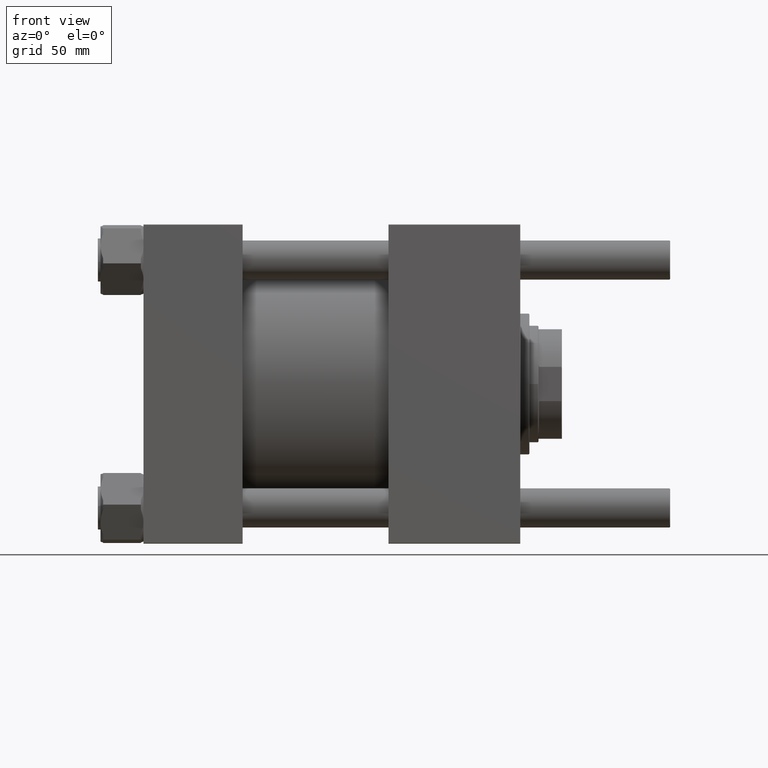
[diagram: clean part render]
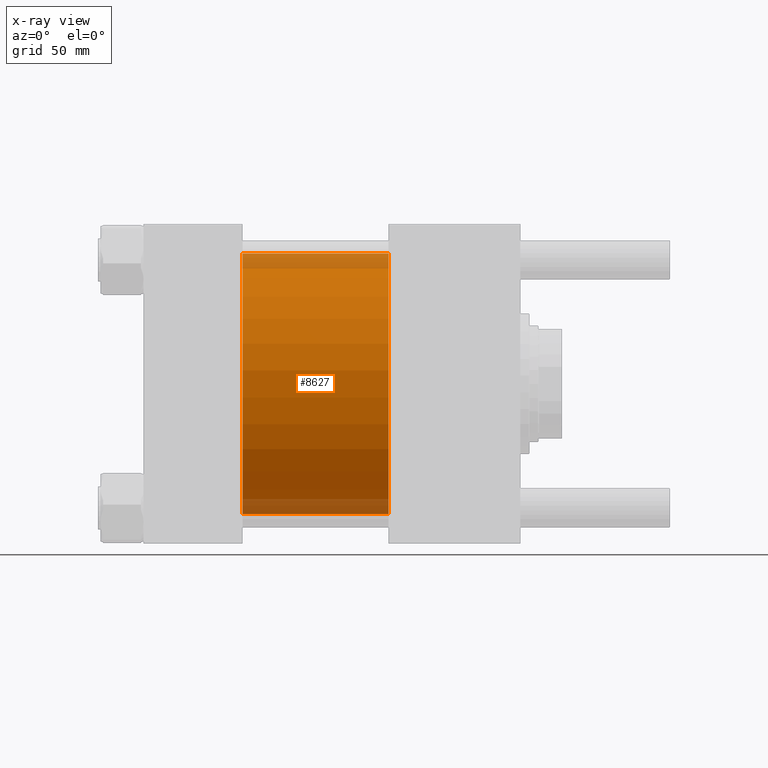
[diagram: x-ray — body ghosted, one internal face saturated and labeled with its STEP entity id]
A machine part, front view, then the same camera in x-ray: the body is ghosted and one INTERNAL B-rep face — a face not visible from any outside direction — is saturated and labeled: STEP entity #8627.
In plain terms, the highlighted cylindrical surface (partial cylindrical patch) has radius 100 mm, axis along (-1, -0, -0).
Its self-contained STEP definition (entity closure, byte-faithful):
#2474 = EDGE_CURVE ( 'NONE', #29721, #10179, #24475, .T. ) ;
#6440 = VECTOR ( 'NONE', #20320, 1000.000000000000000 ) ;
#8627 = ADVANCED_FACE ( 'NONE', ( #9082 ), #18015, .F. ) ;
#9082 = FACE_OUTER_BOUND ( 'NONE', #50731, .T. ) ;
#10179 = VERTEX_POINT ( 'NONE', #38845 ) ;
#11384 = LINE ( 'NONE', #24121, #6440 ) ;
#14545 = DIRECTION ( 'NONE',  ( 0.000000000000000000, 0.000000000000000000, -1.000000000000000000 ) ) ;
#14830 = DIRECTION ( 'NONE',  ( 1.000000000000000000, 0.000000000000000000, 0.000000000000000000 ) ) ;
#18015 = CYLINDRICAL_SURFACE ( 'NONE', #20809, 100.0000000000000000 ) ;
#20320 = DIRECTION ( 'NONE',  ( -1.000000000000000000, -0.000000000000000000, -0.000000000000000000 ) ) ;
#20809 = AXIS2_PLACEMENT_3D ( 'NONE', #26708, #44356, #35676 ) ;
#21563 = AXIS2_PLACEMENT_3D ( 'NONE', #33034, #14830, #14545 ) ;
#24121 = CARTESIAN_POINT ( 'NONE',  ( 188.0000000000000000, 9.644382777508321529E-15, -100.0000000000000000 ) ) ;
#24475 = CIRCLE ( 'NONE', #21563, 100.0000000000000000 ) ;
#24772 = ORIENTED_EDGE ( 'NONE', *, *, #31045, .F. ) ;
#25251 = CARTESIAN_POINT ( 'NONE',  ( 188.0000000000000000, -2.602085213965210642E-15, 0.000000000000000000 ) ) ;
#25869 = EDGE_CURVE ( 'NONE', #51014, #10179, #11384, .T. ) ;
#26288 = ORIENTED_EDGE ( 'NONE', *, *, #39867, .T. ) ;
#26708 = CARTESIAN_POINT ( 'NONE',  ( 188.0000000000000000, -2.602085213965210642E-15, 0.000000000000000000 ) ) ;
#26804 = ORIENTED_EDGE ( 'NONE', *, *, #25869, .T. ) ;
#27316 = CARTESIAN_POINT ( 'NONE',  ( 188.0000000000000000, 9.644382777508321529E-15, -100.0000000000000000 ) ) ;
#29275 = CARTESIAN_POINT ( 'NONE',  ( 188.0000000000000000, -2.602085213965210642E-15, 100.0000000000000000 ) ) ;
#29721 = VERTEX_POINT ( 'NONE', #50641 ) ;
#30470 = DIRECTION ( 'NONE',  ( 1.000000000000000000, 0.000000000000000000, 0.000000000000000000 ) ) ;
#31045 = EDGE_CURVE ( 'NONE', #49805, #29721, #33607, .T. ) ;
#32694 = CIRCLE ( 'NONE', #47475, 100.0000000000000000 ) ;
#33034 = CARTESIAN_POINT ( 'NONE',  ( 76.00000000000000000, -2.602085213965210642E-15, 0.000000000000000000 ) ) ;
#33607 = LINE ( 'NONE', #29275, #34296 ) ;
#34296 = VECTOR ( 'NONE', #54775, 1000.000000000000000 ) ;
#34519 = DIRECTION ( 'NONE',  ( 0.000000000000000000, 0.000000000000000000, -1.000000000000000000 ) ) ;
#35676 = DIRECTION ( 'NONE',  ( 0.000000000000000000, 0.000000000000000000, 1.000000000000000000 ) ) ;
#38845 = CARTESIAN_POINT ( 'NONE',  ( 76.00000000000000000, 9.644382777508321529E-15, -100.0000000000000000 ) ) ;
#39867 = EDGE_CURVE ( 'NONE', #49805, #51014, #32694, .T. ) ;
#44356 = DIRECTION ( 'NONE',  ( -1.000000000000000000, -0.000000000000000000, -0.000000000000000000 ) ) ;
#47475 = AXIS2_PLACEMENT_3D ( 'NONE', #25251, #30470, #34519 ) ;
#49805 = VERTEX_POINT ( 'NONE', #51126 ) ;
#50641 = CARTESIAN_POINT ( 'NONE',  ( 76.00000000000000000, -2.602085213965210642E-15, 100.0000000000000000 ) ) ;
#50731 = EDGE_LOOP ( 'NONE', ( #26288, #26804, #52895, #24772 ) ) ;
#51014 = VERTEX_POINT ( 'NONE', #27316 ) ;
#51126 = CARTESIAN_POINT ( 'NONE',  ( 188.0000000000000000, -2.602085213965210642E-15, 100.0000000000000000 ) ) ;
#52895 = ORIENTED_EDGE ( 'NONE', *, *, #2474, .F. ) ;
#54775 = DIRECTION ( 'NONE',  ( -1.000000000000000000, -0.000000000000000000, -0.000000000000000000 ) ) ;